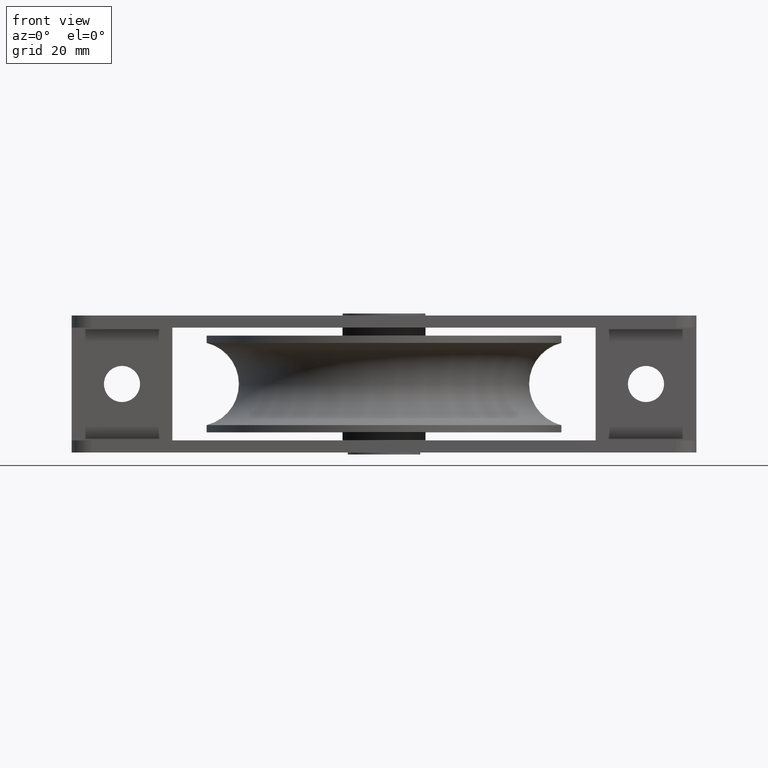
[diagram: clean part render]
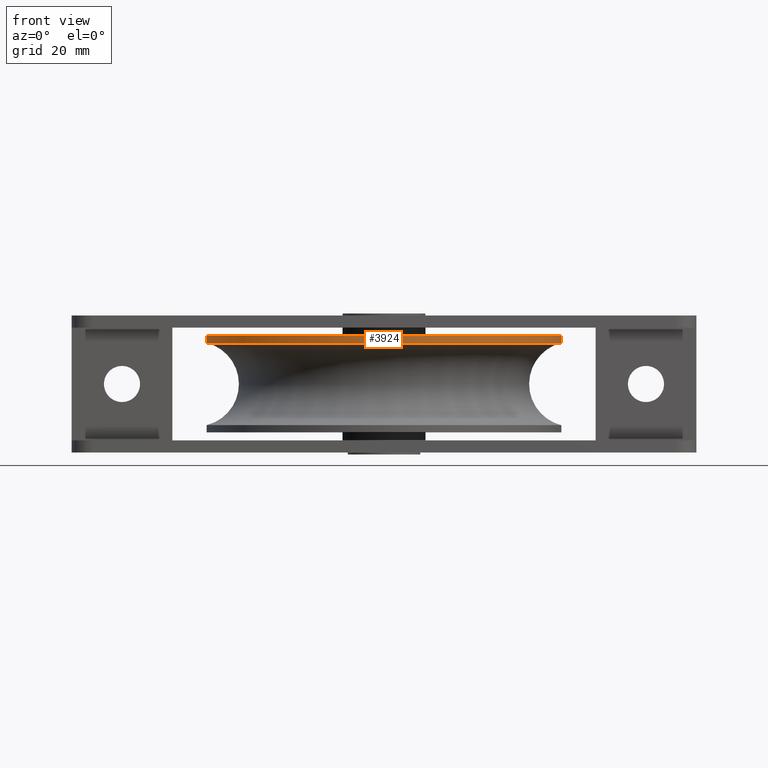
[diagram: same view with one face highlighted and labeled with its STEP entity id]
A machine part, front view. The second image highlights one B-rep face of the part: STEP entity #3924.
In plain terms, the highlighted cylindrical surface (bore or boss wall) has radius 44 mm, axis along (-0, -0, -1).
Its self-contained STEP definition (entity closure, byte-faithful):
#49 = FACE_OUTER_BOUND ( 'NONE', #1201, .T. ) ;
#1201 = EDGE_LOOP ( 'NONE', ( #9798 ) ) ;
#1967 = CARTESIAN_POINT ( 'NONE',  ( 0.0000000000000000000, 0.0000000000000000000, 12.00000000000000000 ) ) ;
#2309 = DIRECTION ( 'NONE',  ( 0.0000000000000000000, 0.0000000000000000000, 1.000000000000000000 ) ) ;
#3168 = FACE_OUTER_BOUND ( 'NONE', #6084, .T. ) ;
#3924 = ADVANCED_FACE ( 'NONE', ( #49, #3168 ), #4038, .T. ) ;
#3999 = AXIS2_PLACEMENT_3D ( 'NONE', #1967, #5222, #6441 ) ;
#4038 = CYLINDRICAL_SURFACE ( 'NONE', #3999, 44.00000000000000000 ) ;
#4355 = CARTESIAN_POINT ( 'NONE',  ( 44.00000000000000000, 0.0000000000000000000, 12.00000000000000000 ) ) ;
#4676 = ORIENTED_EDGE ( 'NONE', *, *, #6325, .T. ) ;
#5222 = DIRECTION ( 'NONE',  ( -0.0000000000000000000, -0.0000000000000000000, -1.000000000000000000 ) ) ;
#5878 = CARTESIAN_POINT ( 'NONE',  ( 0.0000000000000000000, 0.0000000000000000000, 10.19803902718558300 ) ) ;
#6084 = EDGE_LOOP ( 'NONE', ( #4676 ) ) ;
#6325 = EDGE_CURVE ( 'NONE', #9531, #9531, #7222, .T. ) ;
#6441 = DIRECTION ( 'NONE',  ( -1.000000000000000000, 0.0000000000000000000, 0.0000000000000000000 ) ) ;
#7187 = DIRECTION ( 'NONE',  ( 1.000000000000000000, 0.0000000000000000000, 0.0000000000000000000 ) ) ;
#7222 = CIRCLE ( 'NONE', #13719, 44.00000000000004300 ) ;
#7481 = VERTEX_POINT ( 'NONE', #4355 ) ;
#7747 = CARTESIAN_POINT ( 'NONE',  ( 44.00000000000004300, 0.0000000000000000000, 10.19803902718558300 ) ) ;
#7826 = CIRCLE ( 'NONE', #8969, 44.00000000000000000 ) ;
#8631 = EDGE_CURVE ( 'NONE', #7481, #7481, #7826, .T. ) ;
#8969 = AXIS2_PLACEMENT_3D ( 'NONE', #10198, #2309, #13424 ) ;
#9531 = VERTEX_POINT ( 'NONE', #7747 ) ;
#9798 = ORIENTED_EDGE ( 'NONE', *, *, #8631, .F. ) ;
#10198 = CARTESIAN_POINT ( 'NONE',  ( 0.0000000000000000000, 0.0000000000000000000, 12.00000000000000000 ) ) ;
#13424 = DIRECTION ( 'NONE',  ( 1.000000000000000000, 0.0000000000000000000, 0.0000000000000000000 ) ) ;
#13719 = AXIS2_PLACEMENT_3D ( 'NONE', #5878, #13849, #7187 ) ;
#13849 = DIRECTION ( 'NONE',  ( -0.0000000000000000000, -0.0000000000000000000, 1.000000000000000000 ) ) ;